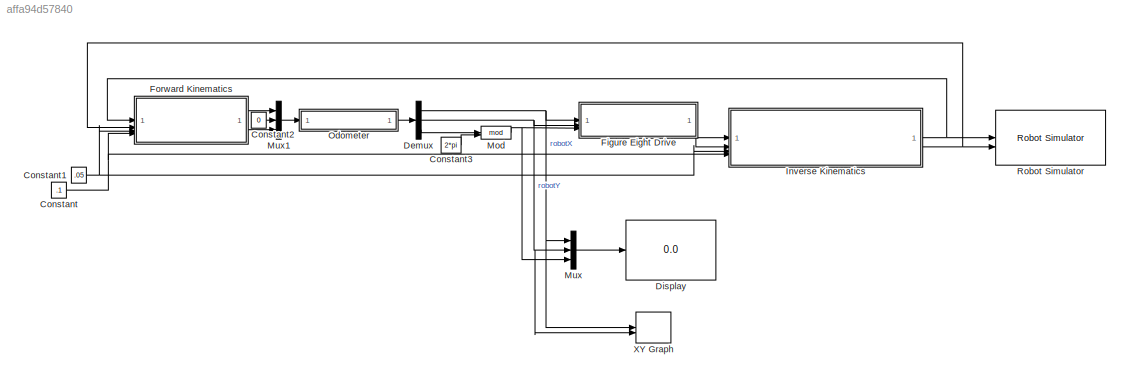
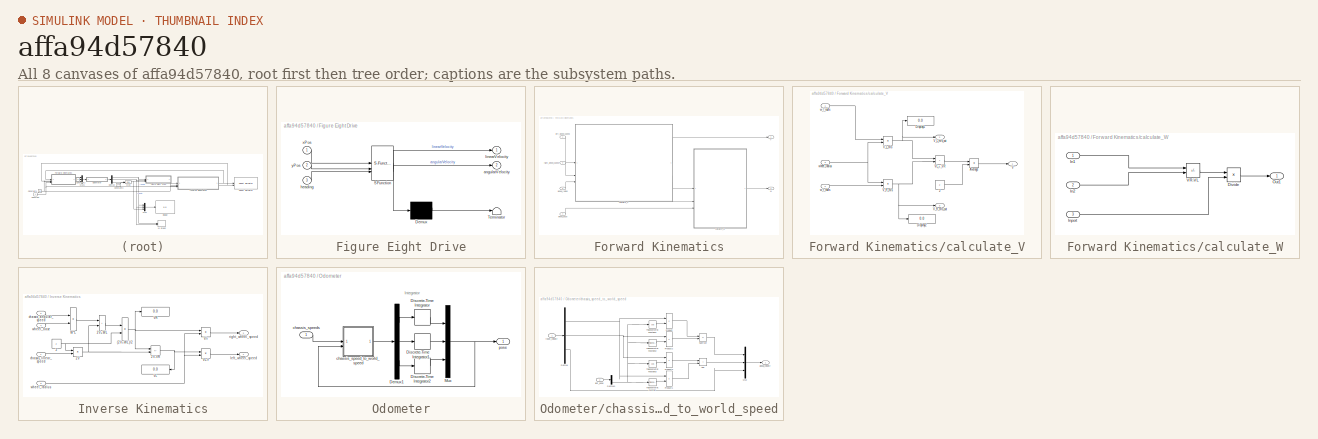
[diagram: thumbnail index - all 8 canvases of the model, root first then tree order]
MODEL slx_affa94d57840
KIND model
CONFIG AbsTol = auto
CONFIG EnableMultiTasking = off
CONFIG FixedStep = 0.01
CONFIG MaxStep = auto
CONFIG MinStep = auto
CONFIG RelTol = 1e-3
CONFIG SampleTimeConstraint = Unconstrained
CONFIG SolverName = FixedStepDiscrete
CONFIG StartTime = 0.0
CONFIG StopTime = 90
BLOCK [Constant] Constant
  Value = .1
BLOCK [Constant] Constant1
  Value = .05
BLOCK [Constant] Constant2
  Value = 0
BLOCK [Constant] Constant3
  Value = 2*pi
BLOCK [Demux] Demux
  Outputs = 3
BLOCK [Display] Display
  Decimation = 1
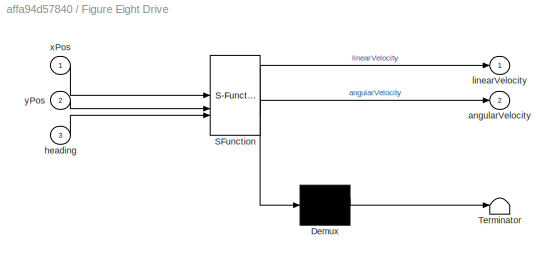
BLOCK [SubSystem] Figure Eight Drive
  ErrorFcn = Stateflow.Translate.translate
  PermitHierarchicalResolution = ExplicitOnly
  SFBlockType = Chart
  TreatAsAtomicUnit = on
BLOCK [Demux] Figure Eight Drive/ Demux 
  Outputs = 1
BLOCK [S-Function] Figure Eight Drive/ SFunction 
  EnableBusSupport = on
  FunctionName = sf_sfun
  PortCounts = [3 3]
  SFcnIsStateOwnerBlock = off
  SFunctionDeploymentMode = off
  Tag = Stateflow S-Function 3
BLOCK [Terminator] Figure Eight Drive/ Terminator 
BLOCK [Outport] Figure Eight Drive/angularVelocity
  Port = 2
BLOCK [Inport] Figure Eight Drive/heading
  Port = 3
BLOCK [Outport] Figure Eight Drive/linearVelocity
BLOCK [Inport] Figure Eight Drive/xPos
BLOCK [Inport] Figure Eight Drive/yPos
  Port = 2
BLOCK [SubSystem] Forward Kinematics
BLOCK [Outport] Forward Kinematics/V
BLOCK [Outport] Forward Kinematics/W
  Port = 2
BLOCK [SubSystem] Forward Kinematics/calculate_V
BLOCK [Constant] Forward Kinematics/calculate_V/2
  Value = 2
BLOCK [Product] Forward Kinematics/calculate_V/Average
  Inputs = */
BLOCK [Display] Forward Kinematics/calculate_V/Display1
  Decimation = 1
BLOCK [Display] Forward Kinematics/calculate_V/Display2
  Decimation = 1
BLOCK [Outport] Forward Kinematics/calculate_V/V
BLOCK [Sum] Forward Kinematics/calculate_V/VL_+_VR
  IconShape = rectangular
BLOCK [Product] Forward Kinematics/calculate_V/V_L_m//s
BLOCK [Outport] Forward Kinematics/calculate_V/V_L_m//s_out
  Port = 2
BLOCK [Product] Forward Kinematics/calculate_V/V_R_m//s
BLOCK [Outport] Forward Kinematics/calculate_V/V_R_m//s_out
  Port = 3
BLOCK [Inport] Forward Kinematics/calculate_V/w_l_rad//s
BLOCK [Inport] Forward Kinematics/calculate_V/w_r_rad//s
  Port = 2
BLOCK [Inport] Forward Kinematics/calculate_V/wheel_radius
  Port = 3
BLOCK [SubSystem] Forward Kinematics/calculate_W
BLOCK [Product] Forward Kinematics/calculate_W/Divide
  Inputs = */
BLOCK [Inport] Forward Kinematics/calculate_W/In1
BLOCK [Inport] Forward Kinematics/calculate_W/In2
  Port = 2
BLOCK [Inport] Forward Kinematics/calculate_W/Inport
  Port = 3
BLOCK [Outport] Forward Kinematics/calculate_W/Out1
BLOCK [Sum] Forward Kinematics/calculate_W/VR-VL
  IconShape = rectangular
  Inputs = -+
BLOCK [Inport] Forward Kinematics/left_wheel_speed
BLOCK [Inport] Forward Kinematics/right_wheel_speed
  Port = 2
BLOCK [Inport] Forward Kinematics/wheel_base
  Port = 4
BLOCK [Inport] Forward Kinematics/wheel_radius
  Port = 3
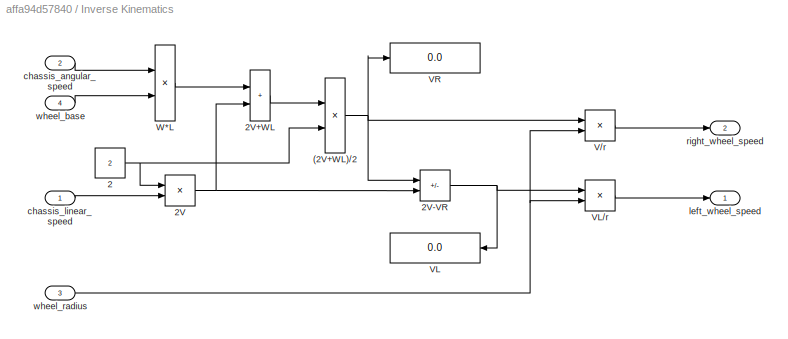
BLOCK [SubSystem] Inverse Kinematics
BLOCK [Product] Inverse Kinematics/(2V+WL)//2
  Inputs = */
BLOCK [Constant] Inverse Kinematics/2
  Value = 2
BLOCK [Product] Inverse Kinematics/2V
BLOCK [Sum] Inverse Kinematics/2V+WL
  IconShape = rectangular
BLOCK [Sum] Inverse Kinematics/2V-VR
  IconShape = rectangular
  Inputs = -+
BLOCK [Product] Inverse Kinematics/V//r
  Inputs = */
BLOCK [Display] Inverse Kinematics/VL
  Decimation = 1
BLOCK [Product] Inverse Kinematics/VL//r
  Inputs = */
BLOCK [Display] Inverse Kinematics/VR
  Decimation = 1
BLOCK [Product] Inverse Kinematics/W*L
BLOCK [Inport] Inverse Kinematics/chassis_angular_speed
  Port = 2
BLOCK [Inport] Inverse Kinematics/chassis_linear_speed
BLOCK [Outport] Inverse Kinematics/left_wheel_speed
BLOCK [Outport] Inverse Kinematics/right_wheel_speed
  Port = 2
BLOCK [Inport] Inverse Kinematics/wheel_base
  Port = 4
BLOCK [Inport] Inverse Kinematics/wheel_radius
  Port = 3
BLOCK [Math] Mod
  Operator = mod
BLOCK [Mux] Mux
  DisplayOption = bar
  Inputs = 3
BLOCK [Mux] Mux1
  DisplayOption = bar
  Inputs = 3
BLOCK [SubSystem] Odometer
BLOCK [Demux] Odometer/Demux1
  Outputs = 3
BLOCK [DiscreteIntegrator] Odometer/Discrete-Time Integrator
  ICPrevOutput = DiscIntNeverNeededParam
  ICPrevScaledInput = DiscIntNeverNeededParam
  InitialCondition = 2
  InitialConditionSetting = Auto
  SampleTime = -1
BLOCK [DiscreteIntegrator] Odometer/Discrete-Time Integrator1
  ICPrevOutput = DiscIntNeverNeededParam
  ICPrevScaledInput = DiscIntNeverNeededParam
  InitialCondition = 2
  InitialConditionSetting = Auto
  SampleTime = -1
BLOCK [DiscreteIntegrator] Odometer/Discrete-Time Integrator2
  ICPrevOutput = DiscIntNeverNeededParam
  ICPrevScaledInput = DiscIntNeverNeededParam
  InitialConditionSetting = Auto
  SampleTime = -1
BLOCK [Mux] Odometer/Mux
  DisplayOption = bar
  Inputs = 3
BLOCK [SubSystem] Odometer/chassis_speed_to_world_speed
BLOCK [Sum] Odometer/chassis_speed_to_world_speed/Add
  IconShape = rectangular
BLOCK [Demux] Odometer/chassis_speed_to_world_speed/Demux
  Outputs = 3
BLOCK [Demux] Odometer/chassis_speed_to_world_speed/Demux1
  Outputs = 3
BLOCK [Mux] Odometer/chassis_speed_to_world_speed/Mux
  DisplayOption = bar
  Inputs = 3
BLOCK [Product] Odometer/chassis_speed_to_world_speed/Product
BLOCK [Product] Odometer/chassis_speed_to_world_speed/Product1
BLOCK [Product] Odometer/chassis_speed_to_world_speed/Product2
BLOCK [Product] Odometer/chassis_speed_to_world_speed/Product3
BLOCK [Sum] Odometer/chassis_speed_to_world_speed/Subtract
  IconShape = rectangular
  Inputs = +-
BLOCK [Trigonometry] Odometer/chassis_speed_to_world_speed/Trigonometric Function
BLOCK [Trigonometry] Odometer/chassis_speed_to_world_speed/Trigonometric Function1
  Operator = cos
BLOCK [Trigonometry] Odometer/chassis_speed_to_world_speed/Trigonometric Function2
BLOCK [Trigonometry] Odometer/chassis_speed_to_world_speed/Trigonometric Function3
  Operator = cos
BLOCK [Outport] Odometer/chassis_speed_to_world_speed/global_velocity
  VectorParamsAs1DForOutWhenUnconnected = off
BLOCK [Inport] Odometer/chassis_speed_to_world_speed/last_pose
  Port = 2
BLOCK [Inport] Odometer/chassis_speed_to_world_speed/robot_velocity
BLOCK [Inport] Odometer/chassis_speeds
BLOCK [Outport] Odometer/pose
  VectorParamsAs1DForOutWhenUnconnected = off
BLOCK [Reference] Robot Simulator  REF=mobileRoboticsTrainingLib/Robot Simulator
  Priority = 99
  SourceBlock = mobileRoboticsTrainingLib/Robot Simulator
  SourceProductName = Mobile Robotics Training Library
  SourceType = Robot Simulator
BLOCK [Record] XY Graph
  AttributesFormatString = %<BackgroundColor>
  CompatibilityTag = XY
  FileSettingsInternal = {"entries":[{"content":{"excelSettings":{"content":{},"type":"Streamout.ExcelSettings"}},"type":"Streamout.FileSettingStorage","uuid":""}],"packageUris":["http:\/\/schema.mathworks.com\/mf0\/streamout_blocks\/R2020a"],"version":"1.0"}
  Layout = [1 1]
  SignalsInternal = {"entries":[{"content":{"signals":[{"content":{"blockPath":[],"dimensions":[1],"domain":"","lineColor":"#a2142f","plots":[ 1 ],"port":1,"sid":[""],"signalID":1,"signalName":"robotX"},"type":"RecordBlkView.Signal","uuid":""},{"content":{"blockPath":[],"dimensions":[1],"domain":"","lineColor":"#139fff","plots":[ 1 ],"port":2,"sid":[""],"signalID":2,"signalName":"robotY"},"type":"RecordBlkView.Signal...<+158ch>
  VisualizationBindings = {"xyplotplugin":{"info":[{"series":[{"bindingParametersList":[{"parameter":"X-Axis","signalID":1,"signalName":"robotX"},{"parameter":"Y-Axis","signalID":2,"signalName":"robotY"}],"seriesID":0}],"subplotID":1}]}}
ANNOTATION Odometer: Integrator
NET Constant1:1 -> Forward Kinematics:3, Inverse Kinematics:3
LINE Constant2:1 -> Mux1:2
LINE Constant3:1 -> Mod:2
NET Constant:1 -> Forward Kinematics:4, Inverse Kinematics:4
NET Demux:1 -> Figure Eight Drive:1, Mux:1, XY Graph:1
NET Demux:2 -> Figure Eight Drive:2, Mux:2, XY Graph:2
LINE Demux:3 -> Mod:1
LINE Figure Eight Drive:1 -> Inverse Kinematics:1
LINE Figure Eight Drive:2 -> Inverse Kinematics:2
LINE Forward Kinematics/calculate_V/2:1 -> Forward Kinematics/calculate_V/Average:2
LINE Forward Kinematics/calculate_V/Average:1 -> Forward Kinematics/calculate_V/V:1
LINE Forward Kinematics/calculate_V/VL_+_VR:1 -> Forward Kinematics/calculate_V/Average:1
NET Forward Kinematics/calculate_V/V_L_m//s:1 -> Forward Kinematics/calculate_V/Display1:1, Forward Kinematics/calculate_V/VL_+_VR:1, Forward Kinematics/calculate_V/V_L_m//s_out:1
NET Forward Kinematics/calculate_V/V_R_m//s:1 -> Forward Kinematics/calculate_V/Display2:1, Forward Kinematics/calculate_V/VL_+_VR:2, Forward Kinematics/calculate_V/V_R_m//s_out:1
LINE Forward Kinematics/calculate_V/w_l_rad//s:1 -> Forward Kinematics/calculate_V/V_L_m//s:1
LINE Forward Kinematics/calculate_V/w_r_rad//s:1 -> Forward Kinematics/calculate_V/V_R_m//s:2
NET Forward Kinematics/calculate_V/wheel_radius:1 -> Forward Kinematics/calculate_V/V_L_m//s:2, Forward Kinematics/calculate_V/V_R_m//s:1
LINE Forward Kinematics/calculate_V:1 -> Forward Kinematics/V:1
LINE Forward Kinematics/calculate_V:2 -> Forward Kinematics/calculate_W:1
LINE Forward Kinematics/calculate_V:3 -> Forward Kinematics/calculate_W:2
LINE Forward Kinematics/calculate_W/Divide:1 -> Forward Kinematics/calculate_W/Out1:1
LINE Forward Kinematics/calculate_W/In1:1 -> Forward Kinematics/calculate_W/VR-VL:1
LINE Forward Kinematics/calculate_W/In2:1 -> Forward Kinematics/calculate_W/VR-VL:2
LINE Forward Kinematics/calculate_W/Inport:1 -> Forward Kinematics/calculate_W/Divide:2
LINE Forward Kinematics/calculate_W/VR-VL:1 -> Forward Kinematics/calculate_W/Divide:1
LINE Forward Kinematics/calculate_W:1 -> Forward Kinematics/W:1
LINE Forward Kinematics/left_wheel_speed:1 -> Forward Kinematics/calculate_V:1
LINE Forward Kinematics/right_wheel_speed:1 -> Forward Kinematics/calculate_V:2
LINE Forward Kinematics/wheel_base:1 -> Forward Kinematics/calculate_W:3
LINE Forward Kinematics/wheel_radius:1 -> Forward Kinematics/calculate_V:3
LINE Forward Kinematics:1 -> Mux1:1
LINE Forward Kinematics:2 -> Mux1:3
NET Inverse Kinematics/(2V+WL)//2:1 -> Inverse Kinematics/2V-VR:1, Inverse Kinematics/V//r:1, Inverse Kinematics/VR:1
NET Inverse Kinematics/2:1 -> Inverse Kinematics/(2V+WL)//2:2, Inverse Kinematics/2V:1
LINE Inverse Kinematics/2V+WL:1 -> Inverse Kinematics/(2V+WL)//2:1
NET Inverse Kinematics/2V-VR:1 -> Inverse Kinematics/VL//r:1, Inverse Kinematics/VL:1
NET Inverse Kinematics/2V:1 -> Inverse Kinematics/2V+WL:2, Inverse Kinematics/2V-VR:2
LINE Inverse Kinematics/V//r:1 -> Inverse Kinematics/right_wheel_speed:1
LINE Inverse Kinematics/VL//r:1 -> Inverse Kinematics/left_wheel_speed:1
LINE Inverse Kinematics/W*L:1 -> Inverse Kinematics/2V+WL:1
LINE Inverse Kinematics/chassis_angular_speed:1 -> Inverse Kinematics/W*L:1
LINE Inverse Kinematics/chassis_linear_speed:1 -> Inverse Kinematics/2V:2
LINE Inverse Kinematics/wheel_base:1 -> Inverse Kinematics/W*L:2
NET Inverse Kinematics/wheel_radius:1 -> Inverse Kinematics/V//r:2, Inverse Kinematics/VL//r:2
NET Inverse Kinematics:1 -> Forward Kinematics:1, Robot Simulator:1
NET Inverse Kinematics:2 -> Forward Kinematics:2, Robot Simulator:2
NET Mod:1 -> Figure Eight Drive:3, Mux:3
LINE Mux1:1 -> Odometer:1
LINE Mux:1 -> Display:1
LINE Odometer/Demux1:1 -> Odometer/Discrete-Time Integrator:1
LINE Odometer/Demux1:2 -> Odometer/Discrete-Time Integrator1:1
LINE Odometer/Demux1:3 -> Odometer/Discrete-Time Integrator2:1
LINE Odometer/Discrete-Time Integrator1:1 -> Odometer/Mux:2
LINE Odometer/Discrete-Time Integrator2:1 -> Odometer/Mux:3
LINE Odometer/Discrete-Time Integrator:1 -> Odometer/Mux:1
NET Odometer/Mux:1 -> Odometer/chassis_speed_to_world_speed:2, Odometer/pose:1
LINE Odometer/chassis_speed_to_world_speed/Add:1 -> Odometer/chassis_speed_to_world_speed/Mux:2
NET Odometer/chassis_speed_to_world_speed/Demux1:3 -> Odometer/chassis_speed_to_world_speed/Trigonometric Function1:1, Odometer/chassis_speed_to_world_speed/Trigonometric Function2:1, Odometer/chassis_speed_to_world_speed/Trigonometric Function3:1, Odometer/chassis_speed_to_world_speed/Trigonometric Function:1
NET Odometer/chassis_speed_to_world_speed/Demux:1 -> Odometer/chassis_speed_to_world_speed/Product1:1, Odometer/chassis_speed_to_world_speed/Product:1
NET Odometer/chassis_speed_to_world_speed/Demux:2 -> Odometer/chassis_speed_to_world_speed/Product2:1, Odometer/chassis_speed_to_world_speed/Product3:1
LINE Odometer/chassis_speed_to_world_speed/Demux:3 -> Odometer/chassis_speed_to_world_speed/Mux:3
LINE Odometer/chassis_speed_to_world_speed/Mux:1 -> Odometer/chassis_speed_to_world_speed/global_velocity:1
LINE Odometer/chassis_speed_to_world_speed/Product1:1 -> Odometer/chassis_speed_to_world_speed/Add:2
LINE Odometer/chassis_speed_to_world_speed/Product2:1 -> Odometer/chassis_speed_to_world_speed/Subtract:2
LINE Odometer/chassis_speed_to_world_speed/Product3:1 -> Odometer/chassis_speed_to_world_speed/Add:1
LINE Odometer/chassis_speed_to_world_speed/Product:1 -> Odometer/chassis_speed_to_world_speed/Subtract:1
LINE Odometer/chassis_speed_to_world_speed/Subtract:1 -> Odometer/chassis_speed_to_world_speed/Mux:1
LINE Odometer/chassis_speed_to_world_speed/Trigonometric Function1:1 -> Odometer/chassis_speed_to_world_speed/Product:2
LINE Odometer/chassis_speed_to_world_speed/Trigonometric Function2:1 -> Odometer/chassis_speed_to_world_speed/Product2:2
LINE Odometer/chassis_speed_to_world_speed/Trigonometric Function3:1 -> Odometer/chassis_speed_to_world_speed/Product3:2
LINE Odometer/chassis_speed_to_world_speed/Trigonometric Function:1 -> Odometer/chassis_speed_to_world_speed/Product1:2
LINE Odometer/chassis_speed_to_world_speed/last_pose:1 -> Odometer/chassis_speed_to_world_speed/Demux1:1
LINE Odometer/chassis_speed_to_world_speed/robot_velocity:1 -> Odometer/chassis_speed_to_world_speed/Demux:1
LINE Odometer/chassis_speed_to_world_speed:1 -> Odometer/Demux1:1
LINE Odometer/chassis_speeds:1 -> Odometer/chassis_speed_to_world_speed:1
LINE Odometer:1 -> Demux:1
note: NET lines group one-source signal fan-out (src -> all destinations, sorted); 1:1 wires keep LINE
CHART Figure Eight Drive states=5 transitions=5
  STATE_LABEL 'CircleDriveLeft\nentry:\nangularVelocity = 1.33333;\ntargetX = xPos;\ntargetY = yPos;\n'
  STATE_LABEL 'Intermediate1\n'
  STATE_LABEL 'CircleDriveRight\nentry:\nangularVelocity = -1.33333;\ntargetX = xPos;\ntargetY = yPos;'
  STATE_LABEL 'Intermediate2\n'
  STATE_LABEL 'These states ensure that we have left the starting position'
CHART  states=0 transitions=0
